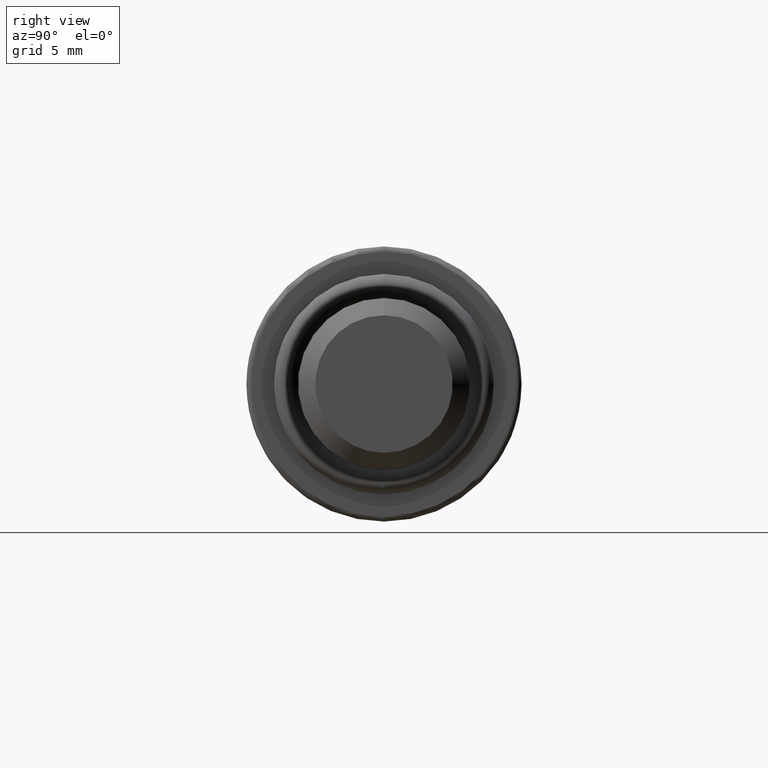
[diagram: clean part render]
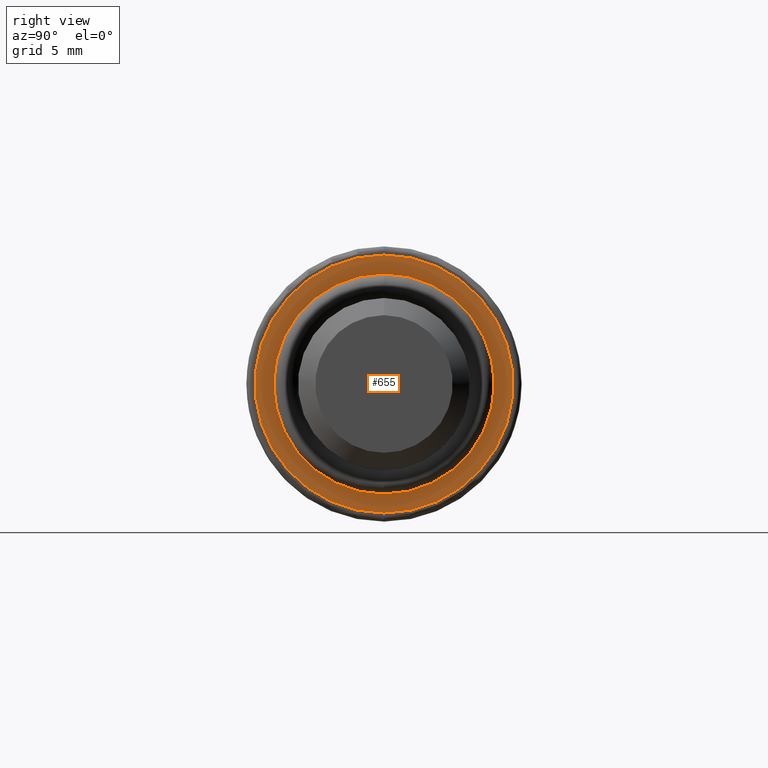
[diagram: same view with one face highlighted and labeled with its STEP entity id]
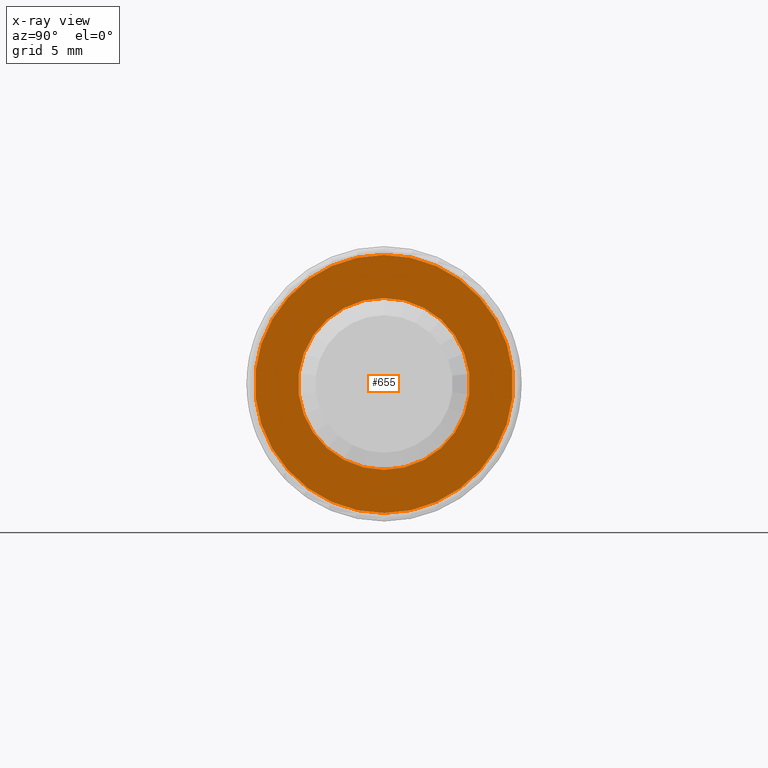
[diagram: x-ray of the same camera — body ghosted, the highlighted face saturated]
A machine part, right view. The second image highlights one B-rep face of the part: STEP entity #655.
The next image is the same camera in x-ray: the body ghosted, the highlighted face saturated — about 0% of this face is hidden behind the body in this view.
In plain terms, the highlighted planar face has unit normal (1, 0, 0).
Its self-contained STEP definition (entity closure, byte-faithful):
#13 = EDGE_CURVE ( 'NONE', #717, #497, #816, .T. ) ;
#46 = FACE_BOUND ( 'NONE', #769, .T. ) ;
#47 = DIRECTION ( 'NONE',  ( 0.0000000000000000000, 0.0000000000000000000, -1.000000000000000000 ) ) ;
#76 = ORIENTED_EDGE ( 'NONE', *, *, #621, .F. ) ;
#85 = DIRECTION ( 'NONE',  ( 1.000000000000000000, 0.0000000000000000000, 0.0000000000000000000 ) ) ;
#95 = EDGE_CURVE ( 'NONE', #497, #717, #436, .T. ) ;
#105 = CARTESIAN_POINT ( 'NONE',  ( -0.9000000000000000200, 0.0000000000000000000, -7.500000000000000000 ) ) ;
#107 = ORIENTED_EDGE ( 'NONE', *, *, #521, .F. ) ;
#115 = CARTESIAN_POINT ( 'NONE',  ( -0.9000000000000000200, 6.123233995736766300E-016, -5.000000000000000000 ) ) ;
#160 = CARTESIAN_POINT ( 'NONE',  ( -0.9000000000000000200, 0.0000000000000000000, 0.0000000000000000000 ) ) ;
#176 = EDGE_LOOP ( 'NONE', ( #541, #425 ) ) ;
#206 = VERTEX_POINT ( 'NONE', #115 ) ;
#315 = CARTESIAN_POINT ( 'NONE',  ( -0.9000000000000000200, 0.0000000000000000000, 5.000000000000000000 ) ) ;
#318 = DIRECTION ( 'NONE',  ( 1.000000000000000000, 0.0000000000000000000, 0.0000000000000000000 ) ) ;
#340 = CARTESIAN_POINT ( 'NONE',  ( -0.9000000000000000200, 0.0000000000000000000, 0.0000000000000000000 ) ) ;
#341 = AXIS2_PLACEMENT_3D ( 'NONE', #340, #783, #404 ) ;
#343 = DIRECTION ( 'NONE',  ( 1.000000000000000000, 0.0000000000000000000, 0.0000000000000000000 ) ) ;
#358 = VERTEX_POINT ( 'NONE', #315 ) ;
#377 = CARTESIAN_POINT ( 'NONE',  ( -0.9000000000000000200, 0.0000000000000000000, 0.0000000000000000000 ) ) ;
#404 = DIRECTION ( 'NONE',  ( 0.0000000000000000000, 0.0000000000000000000, -1.000000000000000000 ) ) ;
#410 = DIRECTION ( 'NONE',  ( 1.000000000000000000, 0.0000000000000000000, 0.0000000000000000000 ) ) ;
#415 = CIRCLE ( 'NONE', #341, 5.000000000000000000 ) ;
#425 = ORIENTED_EDGE ( 'NONE', *, *, #95, .T. ) ;
#436 = CIRCLE ( 'NONE', #814, 7.500000000000000000 ) ;
#459 = CARTESIAN_POINT ( 'NONE',  ( -0.9000000000000000200, 0.0000000000000000000, 0.0000000000000000000 ) ) ;
#497 = VERTEX_POINT ( 'NONE', #770 ) ;
#516 = AXIS2_PLACEMENT_3D ( 'NONE', #730, #410, #561 ) ;
#517 = CIRCLE ( 'NONE', #699, 5.000000000000000000 ) ;
#520 = DIRECTION ( 'NONE',  ( 0.0000000000000000000, 0.0000000000000000000, -1.000000000000000000 ) ) ;
#521 = EDGE_CURVE ( 'NONE', #206, #358, #517, .T. ) ;
#541 = ORIENTED_EDGE ( 'NONE', *, *, #13, .T. ) ;
#554 = AXIS2_PLACEMENT_3D ( 'NONE', #160, #343, #787 ) ;
#561 = DIRECTION ( 'NONE',  ( 0.0000000000000000000, 0.0000000000000000000, -1.000000000000000000 ) ) ;
#621 = EDGE_CURVE ( 'NONE', #358, #206, #415, .T. ) ;
#655 = ADVANCED_FACE ( 'NONE', ( #46, #712 ), #722, .T. ) ;
#699 = AXIS2_PLACEMENT_3D ( 'NONE', #459, #85, #520 ) ;
#712 = FACE_OUTER_BOUND ( 'NONE', #176, .T. ) ;
#717 = VERTEX_POINT ( 'NONE', #105 ) ;
#722 = PLANE ( 'NONE',  #554 ) ;
#730 = CARTESIAN_POINT ( 'NONE',  ( -0.9000000000000000200, 0.0000000000000000000, 0.0000000000000000000 ) ) ;
#769 = EDGE_LOOP ( 'NONE', ( #76, #107 ) ) ;
#770 = CARTESIAN_POINT ( 'NONE',  ( -0.9000000000000000200, 9.184850993605147900E-016, 7.500000000000000000 ) ) ;
#783 = DIRECTION ( 'NONE',  ( 1.000000000000000000, 0.0000000000000000000, 0.0000000000000000000 ) ) ;
#787 = DIRECTION ( 'NONE',  ( 0.0000000000000000000, 0.0000000000000000000, -1.000000000000000000 ) ) ;
#814 = AXIS2_PLACEMENT_3D ( 'NONE', #377, #318, #47 ) ;
#816 = CIRCLE ( 'NONE', #516, 7.500000000000000000 ) ;